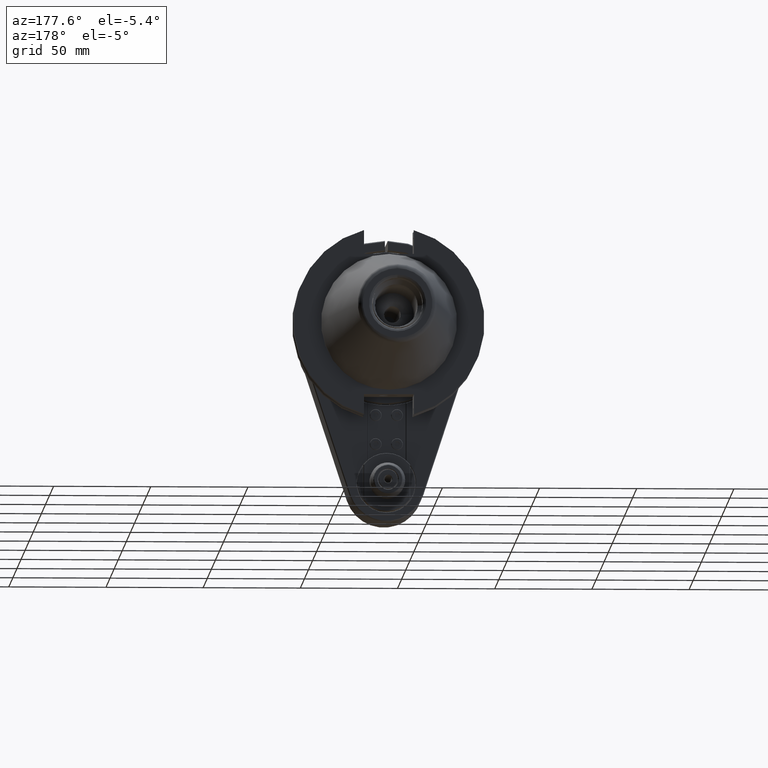
[diagram: clean part render]
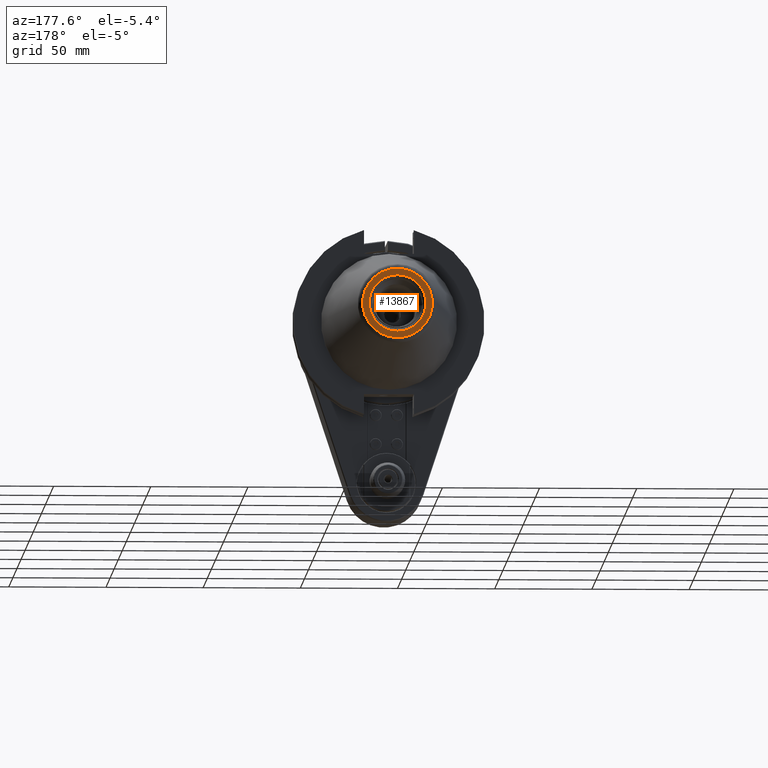
[diagram: same view with one face highlighted and labeled with its STEP entity id]
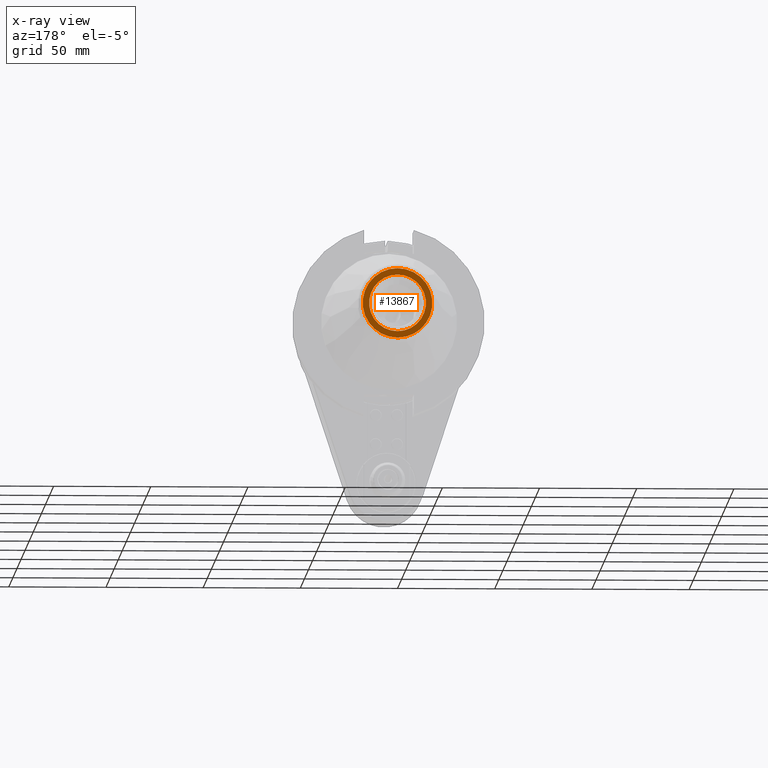
[diagram: x-ray of the same camera — body ghosted, the highlighted face saturated]
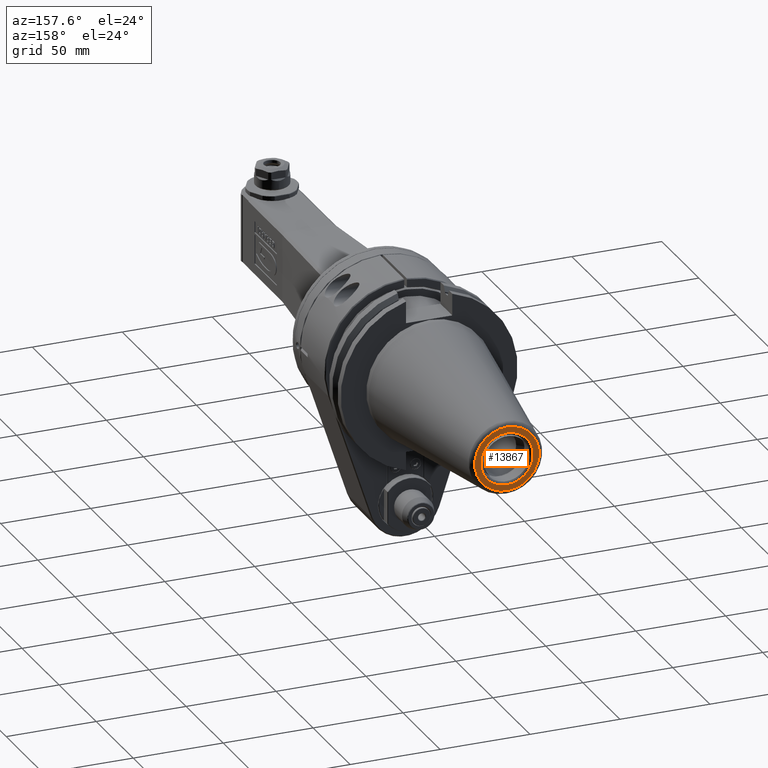
[diagram: same view with one face highlighted and labeled with its STEP entity id]
A machine part, auxiliary view. The second image highlights one B-rep face of the part: STEP entity #13867.
The next image is the same camera in x-ray: the body ghosted, the highlighted face saturated — about 0% of this face is hidden behind the body in this view.
A second angle (auxiliary view) of the same face is appended — the face is thin or edge-on in the first view.
In plain terms, the highlighted planar face has unit normal (0, -1, 0).
Its self-contained STEP definition (entity closure, byte-faithful):
#451=FACE_BOUND('',#2481,.T.);
#875=PLANE('',#15247);
#1626=FACE_OUTER_BOUND('',#2480,.T.);
#2480=EDGE_LOOP('',(#12757,#12758,#12759,#12760,#12761));
#2481=EDGE_LOOP('',(#12762));
#3042=CIRCLE('',#15248,17.91223394038);
#3043=CIRCLE('',#15249,17.91223394038);
#3044=CIRCLE('',#15250,17.91223394038);
#3045=CIRCLE('',#15251,14.60500004308);
#4200=LINE('',#25466,#5365);
#4201=LINE('',#25470,#5366);
#5365=VECTOR('',#19019,10.);
#5366=VECTOR('',#19022,10.);
#6818=VERTEX_POINT('',#25462);
#6819=VERTEX_POINT('',#25463);
#6820=VERTEX_POINT('',#25465);
#6821=VERTEX_POINT('',#25467);
#6822=VERTEX_POINT('',#25469);
#6823=VERTEX_POINT('',#25472);
#8812=EDGE_CURVE('',#6818,#6819,#3042,.T.);
#8813=EDGE_CURVE('',#6818,#6820,#4200,.T.);
#8814=EDGE_CURVE('',#6821,#6820,#3043,.T.);
#8815=EDGE_CURVE('',#6821,#6822,#4201,.T.);
#8816=EDGE_CURVE('',#6819,#6822,#3044,.T.);
#8817=EDGE_CURVE('',#6823,#6823,#3045,.T.);
#12757=ORIENTED_EDGE('',*,*,#8812,.F.);
#12758=ORIENTED_EDGE('',*,*,#8813,.T.);
#12759=ORIENTED_EDGE('',*,*,#8814,.F.);
#12760=ORIENTED_EDGE('',*,*,#8815,.T.);
#12761=ORIENTED_EDGE('',*,*,#8816,.F.);
#12762=ORIENTED_EDGE('',*,*,#8817,.F.);
#13867=ADVANCED_FACE('',(#1626,#451),#875,.F.);
#15247=AXIS2_PLACEMENT_3D('',#25461,#19015,#19016);
#15248=AXIS2_PLACEMENT_3D('',#25464,#19017,#19018);
#15249=AXIS2_PLACEMENT_3D('',#25468,#19020,#19021);
#15250=AXIS2_PLACEMENT_3D('',#25471,#19023,#19024);
#15251=AXIS2_PLACEMENT_3D('',#25473,#19025,#19026);
#19015=DIRECTION('center_axis',(0.,-1.,0.));
#19016=DIRECTION('ref_axis',(0.,0.,1.));
#19017=DIRECTION('center_axis',(0.,-1.,0.));
#19018=DIRECTION('ref_axis',(1.75257595345894E-6,0.,-0.999999999998464));
#19019=DIRECTION('',(-0.999999956785566,0.,0.000293987868777803));
#19020=DIRECTION('center_axis',(0.,-1.,0.));
#19021=DIRECTION('ref_axis',(-1.75257595345894E-6,0.,0.999999999998464));
#19022=DIRECTION('',(0.999999956785566,0.,-0.000293987868777424));
#19023=DIRECTION('center_axis',(0.,-1.,0.));
#19024=DIRECTION('ref_axis',(1.75257595345894E-6,0.,-0.999999999998464));
#19025=DIRECTION('center_axis',(0.,1.,0.));
#19026=DIRECTION('ref_axis',(1.,0.,-1.089245471655E-11));
#25461=CARTESIAN_POINT('Origin',(0.,169.8,-1.224645799147E-14));
#25462=CARTESIAN_POINT('',(3.13927630431065E-5,169.8,-17.9122334592776));
#25463=CARTESIAN_POINT('',(0.0193558805036644,169.8,17.9122234824376));
#25464=CARTESIAN_POINT('Origin',(0.,169.8,-1.224645799147E-14));
#25465=CARTESIAN_POINT('',(-0.0192756377489765,169.8,-17.9122254355694));
#25466=CARTESIAN_POINT('',(1.046418176462E-5,169.8,-17.91223297205));
#25467=CARTESIAN_POINT('',(-1.04642533628471E-5,169.8,17.9122334562135));
#25468=CARTESIAN_POINT('Origin',(0.,169.8,-1.224645799147E-14));
#25469=CARTESIAN_POINT('',(0.0192756377489965,169.8,17.9122254355693));
#25470=CARTESIAN_POINT('',(-1.046418176949E-5,169.8,17.91223297205));
#25471=CARTESIAN_POINT('Origin',(0.,169.8,-1.224645799147E-14));
#25472=CARTESIAN_POINT('',(1.68876297903313E-14,169.799999963583,14.605000043087));
#25473=CARTESIAN_POINT('Origin',(1.50990331349E-14,169.7999999636,-2.983997760816E-14));